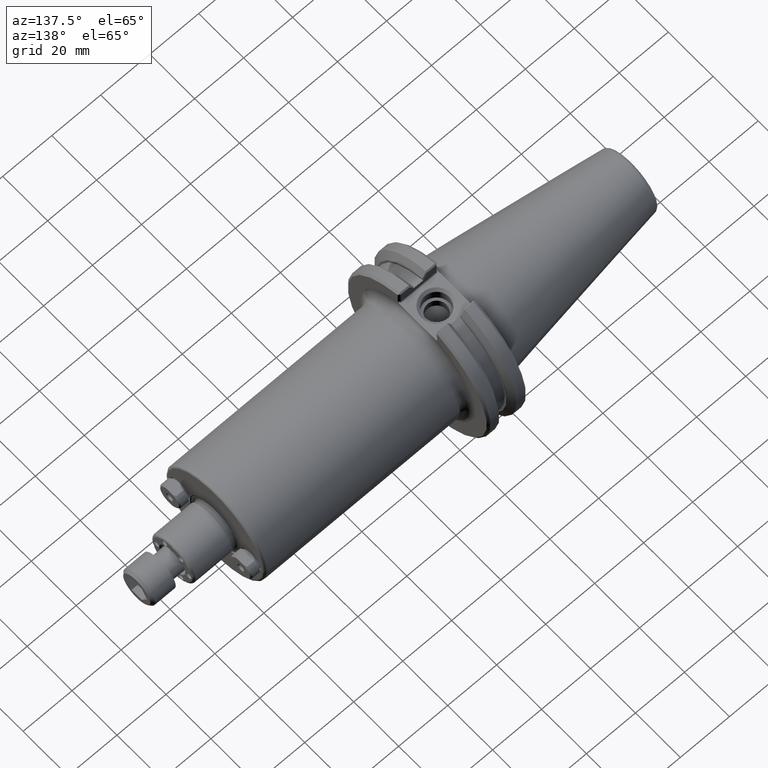
[diagram: clean part render]
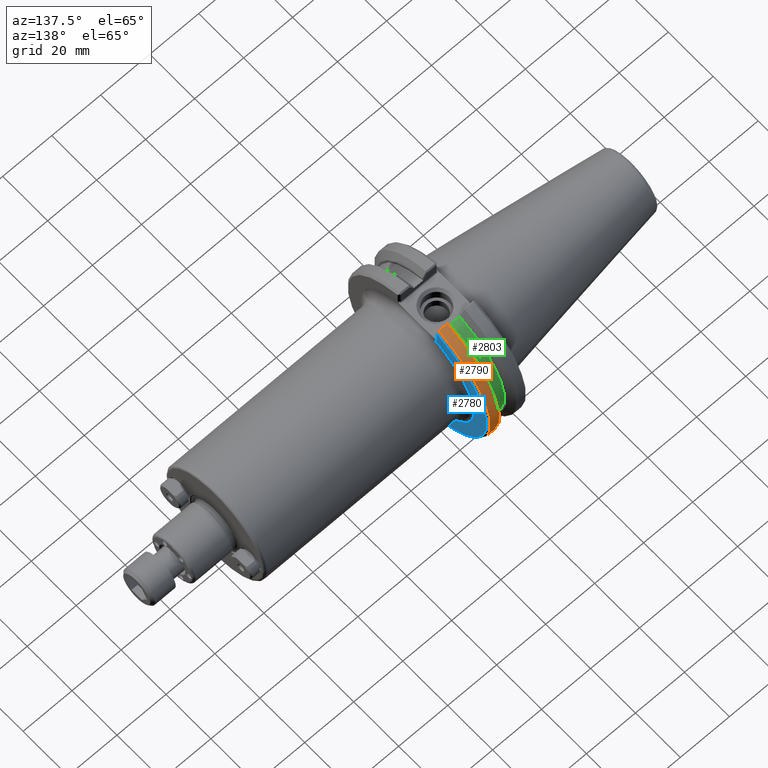
[diagram: same view with three faces highlighted in distinct colors, each labeled with its STEP entity id]
A machine part, auxiliary view with three faces highlighted in distinct colors.
Their STEP definitions:

[orange] entity #2790 — the highlighted cylindrical surface (partial cylindrical patch) has radius 31.75 mm, axis along (1, 0, 0).
#554=FACE_OUTER_BOUND('',#785,.T.);
#785=EDGE_LOOP('',(#2378,#2379,#2380,#2381));
#972=CIRCLE('',#3059,1.25);
#976=CIRCLE('',#3068,1.25);
#1065=LINE('',#5439,#1202);
#1105=LINE('',#5756,#1242);
#1202=VECTOR('',#3509,0.142826127774115);
#1242=VECTOR('',#3657,0.142826127774115);
#1428=VERTEX_POINT('',#5434);
#1429=VERTEX_POINT('',#5438);
#1474=VERTEX_POINT('',#5751);
#1475=VERTEX_POINT('',#5755);
#1719=EDGE_CURVE('',#1428,#1429,#1065,.T.);
#1798=EDGE_CURVE('',#1474,#1475,#1105,.T.);
#1808=EDGE_CURVE('',#1475,#1428,#972,.T.);
#1816=EDGE_CURVE('',#1474,#1429,#976,.T.);
#2378=ORIENTED_EDGE('',*,*,#1798,.F.);
#2379=ORIENTED_EDGE('',*,*,#1816,.T.);
#2380=ORIENTED_EDGE('',*,*,#1719,.F.);
#2381=ORIENTED_EDGE('',*,*,#1808,.F.);
#2667=CYLINDRICAL_SURFACE('',#3067,1.25);
#2790=ADVANCED_FACE('',(#554),#2667,.T.);
#3059=AXIS2_PLACEMENT_3D('',#5786,#3678,#3679);
#3067=AXIS2_PLACEMENT_3D('',#5805,#3696,#3697);
#3068=AXIS2_PLACEMENT_3D('',#5806,#3698,#3699);
#3509=DIRECTION('',(-1.,-1.16523256636576E-36,0.));
#3657=DIRECTION('',(1.,1.16523256636576E-36,0.));
#3678=DIRECTION('center_axis',(1.,1.16523256636576E-36,0.));
#3679=DIRECTION('ref_axis',(1.62451355720802E-13,1.,0.));
#3696=DIRECTION('center_axis',(1.,1.16523256636576E-36,0.));
#3697=DIRECTION('ref_axis',(1.62451355720802E-13,1.,0.));
#3698=DIRECTION('center_axis',(1.,1.16523256636576E-36,0.));
#3699=DIRECTION('ref_axis',(1.62451355720802E-13,1.,0.));
#5434=CARTESIAN_POINT('',(0.72,0.339628138321787,1.20297661143518));
#5438=CARTESIAN_POINT('',(0.577173872225885,0.339628138321787,1.20297661143518));
#5439=CARTESIAN_POINT('',(0.4375,0.339628138321787,1.20297661143518));
#5751=CARTESIAN_POINT('',(0.577173872225885,0.339628138321787,-1.20297661143518));
#5755=CARTESIAN_POINT('',(0.72,0.339628138321787,-1.20297661143518));
#5756=CARTESIAN_POINT('',(0.4375,0.339628138321787,-1.20297661143518));
#5786=CARTESIAN_POINT('Origin',(0.72,-7.690534938014E-37,0.));
#5805=CARTESIAN_POINT('Origin',(0.4375,-1.09823169379973E-36,0.));
#5806=CARTESIAN_POINT('Origin',(0.577173872225885,-9.35479149211715E-37,
0.));

[blue] entity #2780 — the highlighted planar face has unit normal (1, 0, 0).
#280=ELLIPSE('',#3007,0.0282842712474619,0.02);
#413=PLANE('',#3047);
#544=FACE_OUTER_BOUND('',#771,.T.);
#771=EDGE_LOOP('',(#2319,#2320,#2321,#2322,#2323,#2324));
#941=CIRCLE('',#2957,0.995);
#966=CIRCLE('',#3048,1.22);
#1080=LINE('',#5637,#1217);
#1101=LINE('',#5717,#1238);
#1104=LINE('',#5734,#1241);
#1217=VECTOR('',#3552,0.178202973846762);
#1238=VECTOR('',#3619,0.236929166221263);
#1241=VECTOR('',#3636,0.104016410465241);
#1353=VERTEX_POINT('',#4269);
#1354=VERTEX_POINT('',#4274);
#1445=VERTEX_POINT('',#5624);
#1446=VERTEX_POINT('',#5626);
#1448=VERTEX_POINT('',#5636);
#1466=VERTEX_POINT('',#5713);
#1627=EDGE_CURVE('',#1353,#1354,#941,.T.);
#1744=EDGE_CURVE('',#1445,#1446,#280,.T.);
#1748=EDGE_CURVE('',#1446,#1448,#1080,.T.);
#1784=EDGE_CURVE('',#1466,#1353,#1101,.T.);
#1791=EDGE_CURVE('',#1445,#1354,#1104,.T.);
#1796=EDGE_CURVE('',#1448,#1466,#966,.T.);
#2319=ORIENTED_EDGE('',*,*,#1627,.F.);
#2320=ORIENTED_EDGE('',*,*,#1784,.F.);
#2321=ORIENTED_EDGE('',*,*,#1796,.F.);
#2322=ORIENTED_EDGE('',*,*,#1748,.F.);
#2323=ORIENTED_EDGE('',*,*,#1744,.F.);
#2324=ORIENTED_EDGE('',*,*,#1791,.T.);
#2780=ADVANCED_FACE('',(#544),#413,.T.);
#2957=AXIS2_PLACEMENT_3D('',#4275,#3395,#3396);
#3007=AXIS2_PLACEMENT_3D('',#5627,#3544,#3545);
#3047=AXIS2_PLACEMENT_3D('',#5748,#3651,#3652);
#3048=AXIS2_PLACEMENT_3D('',#5749,#3653,#3654);
#3395=DIRECTION('center_axis',(1.,1.16523256636576E-36,0.));
#3396=DIRECTION('ref_axis',(1.16523256636576E-36,-1.,1.22464679914735E-16));
#3544=DIRECTION('center_axis',(1.,1.16523256636576E-36,0.));
#3545=DIRECTION('ref_axis',(0.,1.,1.44878118111815E-16));
#3552=DIRECTION('',(0.,0.,1.));
#3619=DIRECTION('',(0.,0.,1.));
#3636=DIRECTION('',(1.16523256636576E-36,-1.,-3.67894043826846E-32));
#3651=DIRECTION('center_axis',(1.,1.16523256636576E-36,0.));
#3652=DIRECTION('ref_axis',(0.,0.,-1.));
#3653=DIRECTION('center_axis',(-1.,-1.16523256636576E-36,0.));
#3654=DIRECTION('ref_axis',(0.,1.,0.));
#4269=CARTESIAN_POINT('',(0.75,0.34500000000034,-0.933273807625482));
#4274=CARTESIAN_POINT('',(0.75,0.212699318287579,0.972));
#4275=CARTESIAN_POINT('Origin',(0.75,-7.34096516810427E-37,0.));
#5624=CARTESIAN_POINT('',(0.75,0.316715728752819,0.972));
#5626=CARTESIAN_POINT('',(0.75,0.345000000000281,0.992));
#5627=CARTESIAN_POINT('Origin',(0.75,0.316715728752819,0.992));
#5636=CARTESIAN_POINT('',(0.75,0.345000000000281,1.17020297384676));
#5637=CARTESIAN_POINT('',(0.75,0.345000000000281,0.486));
#5713=CARTESIAN_POINT('',(0.75,0.34500000000034,-1.17020297384674));
#5717=CARTESIAN_POINT('',(0.75,0.34500000000034,-0.444));
#5734=CARTESIAN_POINT('',(0.75,0.53125000000014,0.972));
#5748=CARTESIAN_POINT('Origin',(0.75,1.0625,0.));
#5749=CARTESIAN_POINT('Origin',(0.75,-7.34096516810427E-37,0.));

[green] entity #2803 — the highlighted cylindrical surface (partial cylindrical patch) has radius 28.1813 mm, axis along (-1, 0, 0).
#567=FACE_OUTER_BOUND('',#808,.T.);
#808=EDGE_LOOP('',(#2428,#2429,#2430,#2431));
#954=CIRCLE('',#2986,1.1095000000003);
#985=CIRCLE('',#3090,1.10950000000028);
#1051=LINE('',#4859,#1188);
#1066=LINE('',#5445,#1203);
#1188=VECTOR('',#3481,0.151);
#1203=VECTOR('',#3512,0.151);
#1394=VERTEX_POINT('',#4810);
#1395=VERTEX_POINT('',#4812);
#1404=VERTEX_POINT('',#4857);
#1430=VERTEX_POINT('',#5444);
#1674=EDGE_CURVE('',#1395,#1394,#954,.T.);
#1685=EDGE_CURVE('',#1394,#1404,#1051,.T.);
#1721=EDGE_CURVE('',#1430,#1395,#1066,.T.);
#1826=EDGE_CURVE('',#1430,#1404,#985,.T.);
#2428=ORIENTED_EDGE('',*,*,#1685,.T.);
#2429=ORIENTED_EDGE('',*,*,#1826,.F.);
#2430=ORIENTED_EDGE('',*,*,#1721,.T.);
#2431=ORIENTED_EDGE('',*,*,#1674,.T.);
#2670=CYLINDRICAL_SURFACE('',#3089,1.10950000000029);
#2803=ADVANCED_FACE('',(#567),#2670,.T.);
#2986=AXIS2_PLACEMENT_3D('',#4813,#3468,#3469);
#3089=AXIS2_PLACEMENT_3D('',#5837,#3740,#3741);
#3090=AXIS2_PLACEMENT_3D('',#5838,#3742,#3743);
#3468=DIRECTION('center_axis',(-1.,1.62451355720802E-13,0.));
#3469=DIRECTION('ref_axis',(1.62482077846342E-13,1.,0.));
#3481=DIRECTION('',(-1.,1.62451355720802E-13,0.));
#3512=DIRECTION('',(1.,-1.62451355720802E-13,0.));
#3740=DIRECTION('center_axis',(-1.,1.62451355720802E-13,0.));
#3741=DIRECTION('ref_axis',(1.62482077846342E-13,1.,0.));
#3742=DIRECTION('center_axis',(-1.,1.62451355720802E-13,0.));
#3743=DIRECTION('ref_axis',(1.62482077846342E-13,1.,0.));
#4810=CARTESIAN_POINT('',(0.513849999999662,0.320000000000302,-1.06235128371));
#4812=CARTESIAN_POINT('',(0.513849999999662,0.320000000000281,1.06235128371001));
#4813=CARTESIAN_POINT('Origin',(0.51384999999961,-3.01729025547968E-13,
0.));
#4857=CARTESIAN_POINT('',(0.362849999999662,0.320000000000277,-1.06235128370999));
#4859=CARTESIAN_POINT('',(0.438349999999662,0.32000000000029,-1.06235128370999));
#5444=CARTESIAN_POINT('',(0.362849999999662,0.320000000000281,1.06235128370999));
#5445=CARTESIAN_POINT('',(0.438349999999662,0.320000000000281,1.06235128371));
#5837=CARTESIAN_POINT('Origin',(0.43834999999961,-2.89463948191047E-13,
0.));
#5838=CARTESIAN_POINT('Origin',(0.36284999999961,-2.77198870834127E-13,
0.));